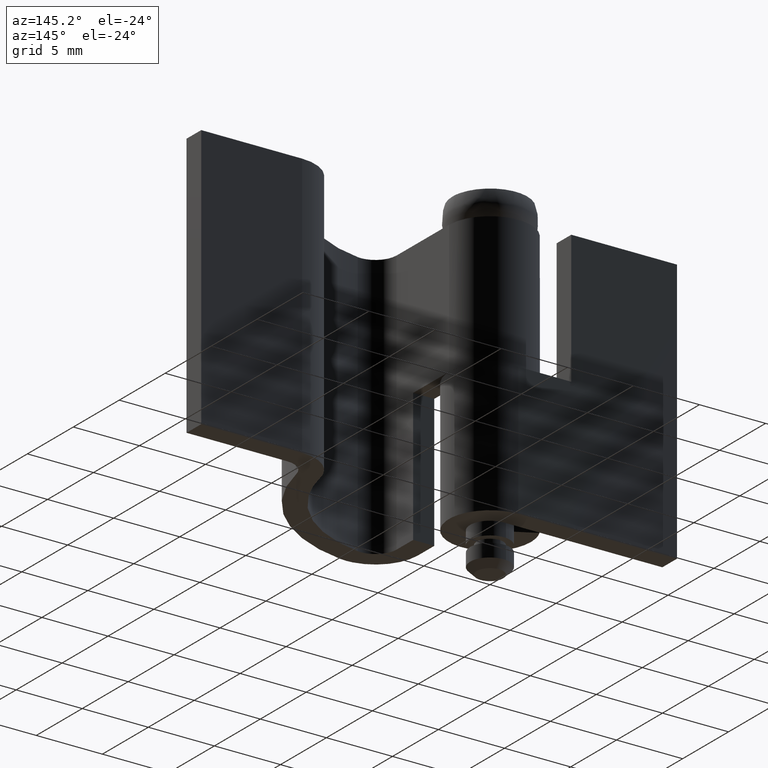
[diagram: clean part render]
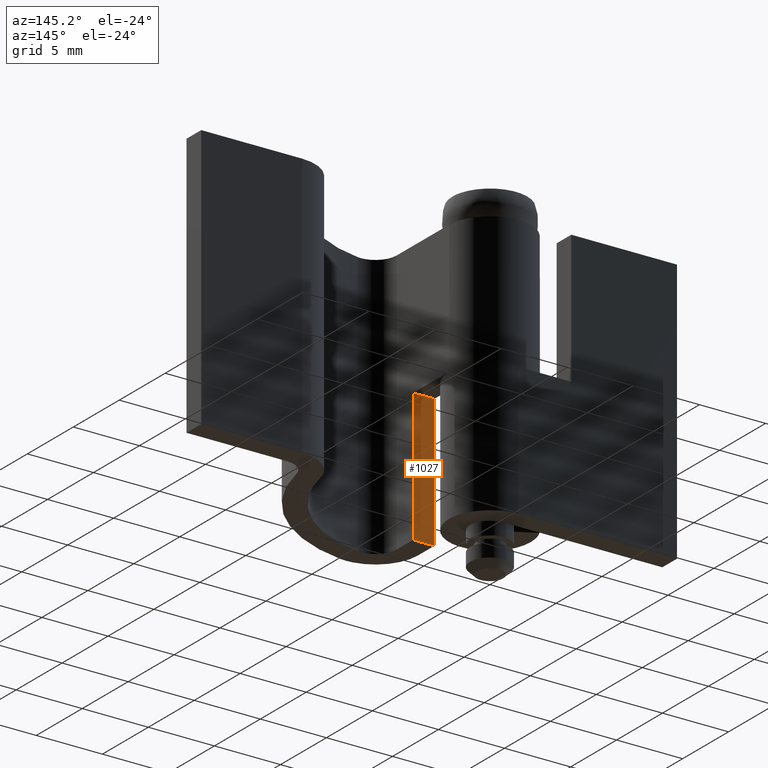
[diagram: same view with one face highlighted and labeled with its STEP entity id]
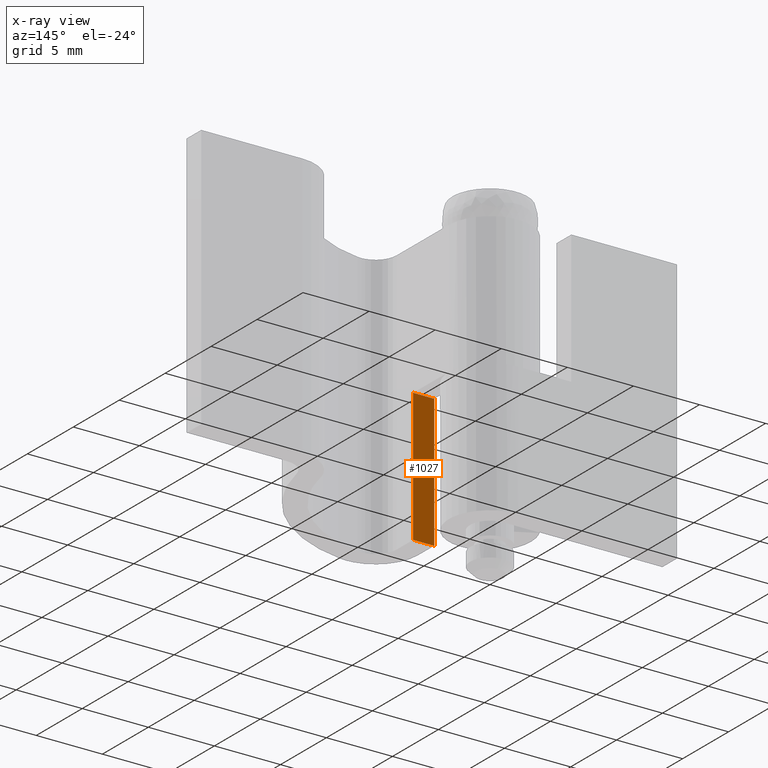
[diagram: x-ray of the same camera — body ghosted, the highlighted face saturated]
A machine part, auxiliary view. The second image highlights one B-rep face of the part: STEP entity #1027.
The next image is the same camera in x-ray: the body ghosted, the highlighted face saturated — about 0% of this face is hidden behind the body in this view.
In plain terms, the highlighted face is a freeform B-spline surface patch.
Its self-contained STEP definition (entity closure, byte-faithful):
#992=CARTESIAN_POINT('',(1.420080058767484,-3.899994000000000,13.499499980618060));
#993=CARTESIAN_POINT('',(1.420080058767484,-3.899994000000000,2.500499751161039));
#994=CARTESIAN_POINT('',(3.179918869707081,-3.899994000000000,13.499499980618060));
#995=CARTESIAN_POINT('',(3.179918869707081,-3.899994000000000,2.500499751161039));
#996=B_SPLINE_SURFACE_WITH_KNOTS('',1,1,((#992,#994),(#993,#995)),.UNSPECIFIED.,.F.,.F.,.U.,(2,2),(2,2),(0.0,10.999000229457019),(0.041708337925747,0.958291624821350),.UNSPECIFIED.);
#997=CARTESIAN_POINT('',(1.500000000000055,-3.899994000000000,13.0));
#998=VERTEX_POINT('',#997);
#999=CARTESIAN_POINT('',(3.099999000000000,-3.899994000000000,13.0));
#1000=VERTEX_POINT('',#999);
#1001=CARTESIAN_POINT('',(1.500000000000055,-3.899994000000000,13.0));
#1002=CARTESIAN_POINT('',(3.099999000000000,-3.899994000000000,13.0));
#1003=QUASI_UNIFORM_CURVE('',1,(#1001,#1002),.UNSPECIFIED.,.F.,.U.);
#1004=EDGE_CURVE('',#998,#1000,#1003,.T.);
#1005=ORIENTED_EDGE('',*,*,#1004,.T.);
#1006=CARTESIAN_POINT('',(3.099999000000040,-3.899994000000000,3.0));
#1007=VERTEX_POINT('',#1006);
#1008=CARTESIAN_POINT('',(3.099999000000000,-3.899994000000000,13.0));
#1009=CARTESIAN_POINT('',(3.099999000000040,-3.899994000000000,3.0));
#1010=QUASI_UNIFORM_CURVE('',1,(#1008,#1009),.UNSPECIFIED.,.F.,.U.);
#1011=EDGE_CURVE('',#1000,#1007,#1010,.T.);
#1012=ORIENTED_EDGE('',*,*,#1011,.T.);
#1013=CARTESIAN_POINT('',(1.500000000000055,-3.899994000000000,3.0));
#1014=VERTEX_POINT('',#1013);
#1015=CARTESIAN_POINT('',(1.500000000000055,-3.899994000000000,3.0));
#1016=CARTESIAN_POINT('',(3.099999000000040,-3.899994000000000,3.0));
#1017=QUASI_UNIFORM_CURVE('',1,(#1015,#1016),.UNSPECIFIED.,.F.,.U.);
#1018=EDGE_CURVE('',#1014,#1007,#1017,.T.);
#1019=ORIENTED_EDGE('',*,*,#1018,.F.);
#1020=CARTESIAN_POINT('',(1.500000000000055,-3.899994000000000,13.0));
#1021=CARTESIAN_POINT('',(1.500000000000055,-3.899994000000000,3.0));
#1022=QUASI_UNIFORM_CURVE('',1,(#1020,#1021),.UNSPECIFIED.,.F.,.U.);
#1023=EDGE_CURVE('',#998,#1014,#1022,.T.);
#1024=ORIENTED_EDGE('',*,*,#1023,.F.);
#1025=EDGE_LOOP('',(#1005,#1012,#1019,#1024));
#1026=FACE_OUTER_BOUND('',#1025,.T.);
#1027=ADVANCED_FACE('',(#1026),#996,.F.);